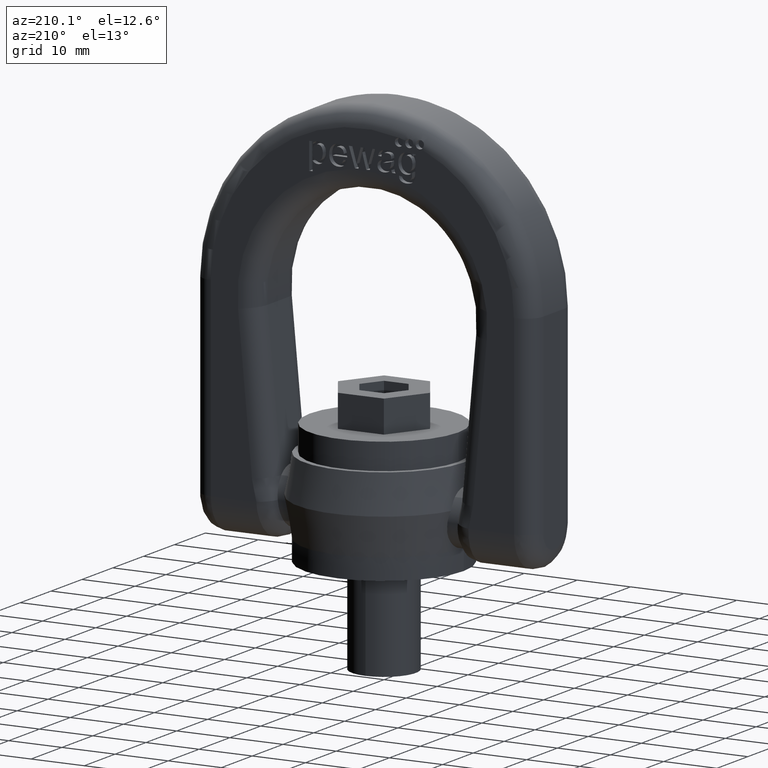
[diagram: clean part render]
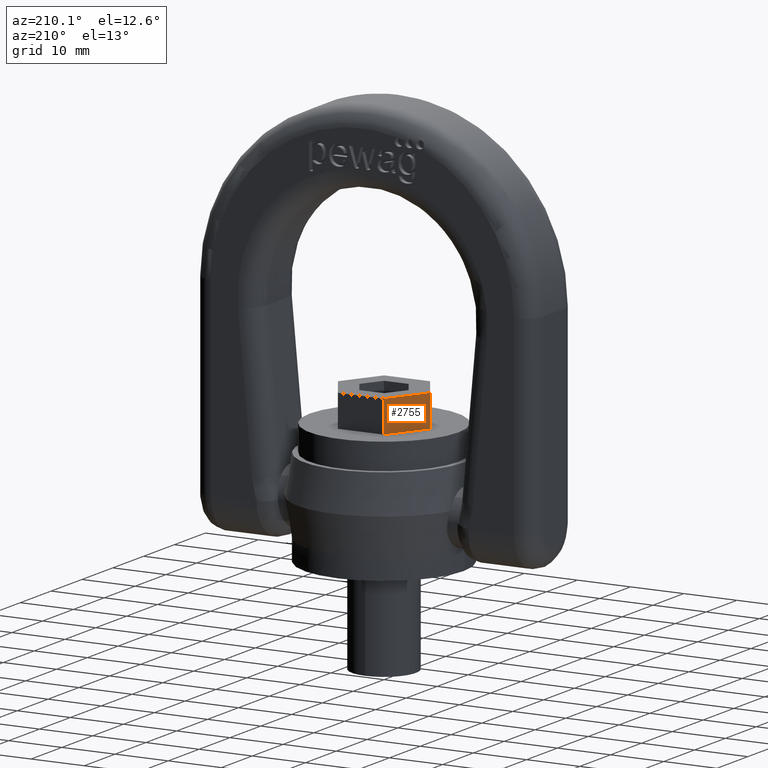
[diagram: same view with one face highlighted and labeled with its STEP entity id]
A machine part, auxiliary view. The second image highlights one B-rep face of the part: STEP entity #2755.
In plain terms, the highlighted planar face has unit normal (0.866, -0.5, 0).
Its self-contained STEP definition (entity closure, byte-faithful):
#1758=LINE('',#6642,#2040);
#1765=LINE('',#6656,#2047);
#1772=LINE('',#6670,#2054);
#1774=LINE('',#6674,#2056);
#2040=VECTOR('',#5859,1.);
#2047=VECTOR('',#5868,1.);
#2054=VECTOR('',#5883,1.);
#2056=VECTOR('',#5887,1.);
#2419=FACE_OUTER_BOUND('',#3085,.T.);
#2636=PLANE('',#5638);
#2755=ADVANCED_FACE('',(#2419),#2636,.F.);
#3085=EDGE_LOOP('',(#3379,#3380,#3381,#3382));
#3379=ORIENTED_EDGE('',*,*,#4960,.T.);
#3380=ORIENTED_EDGE('',*,*,#4967,.F.);
#3381=ORIENTED_EDGE('',*,*,#4976,.F.);
#3382=ORIENTED_EDGE('',*,*,#4974,.T.);
#4557=VERTEX_POINT('',#6640);
#4559=VERTEX_POINT('',#6643);
#4564=VERTEX_POINT('',#6655);
#4568=VERTEX_POINT('',#6671);
#4960=EDGE_CURVE('',#4559,#4557,#1758,.T.);
#4967=EDGE_CURVE('',#4564,#4557,#1765,.T.);
#4974=EDGE_CURVE('',#4568,#4559,#1772,.T.);
#4976=EDGE_CURVE('',#4568,#4564,#1774,.T.);
#5638=AXIS2_PLACEMENT_3D('',#6675,#5888,#5889);
#5859=DIRECTION('',(-0.5,-0.866025403784438,0.));
#5868=DIRECTION('',(0.,0.,-1.));
#5883=DIRECTION('',(0.,0.,-1.));
#5887=DIRECTION('',(-0.5,-0.866025403784438,0.));
#5888=DIRECTION('',(0.866025403784439,-0.5,0.));
#5889=DIRECTION('',(0.5,0.866025403784439,0.));
#6640=CARTESIAN_POINT('',(-8.66025403784439,0.,23.));
#6642=CARTESIAN_POINT('',(-4.33012701892219,7.5,23.));
#6643=CARTESIAN_POINT('',(-4.33012701892219,7.5,23.));
#6655=CARTESIAN_POINT('',(-8.66025403784439,0.,29.));
#6656=CARTESIAN_POINT('',(-8.66025403784439,0.,29.));
#6670=CARTESIAN_POINT('',(-4.33012701892219,7.5,29.));
#6671=CARTESIAN_POINT('',(-4.33012701892219,7.5,29.));
#6674=CARTESIAN_POINT('',(-4.33012701892219,7.5,29.));
#6675=CARTESIAN_POINT('',(-4.33012701892219,7.5,29.));